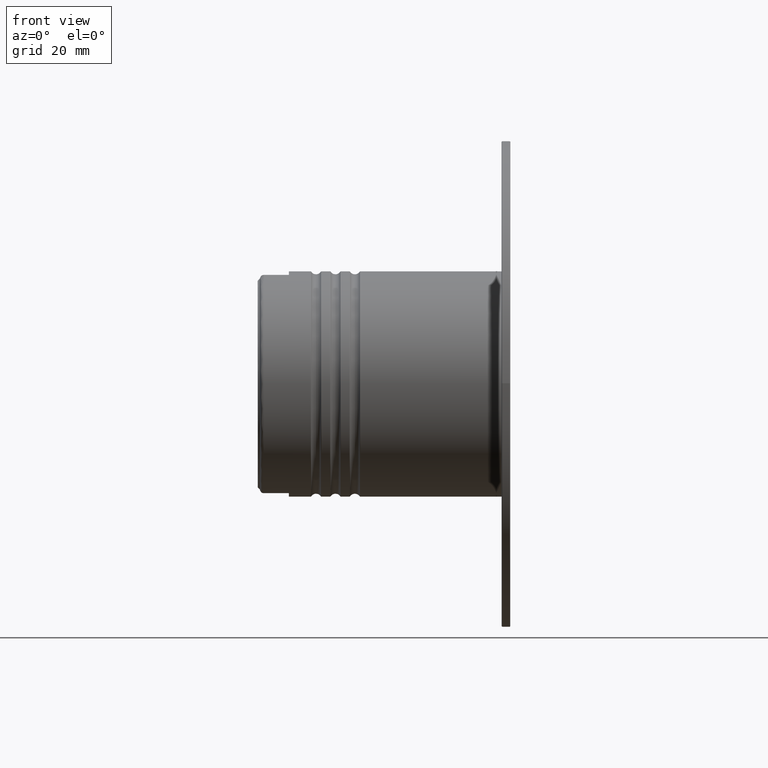
[diagram: clean part render]
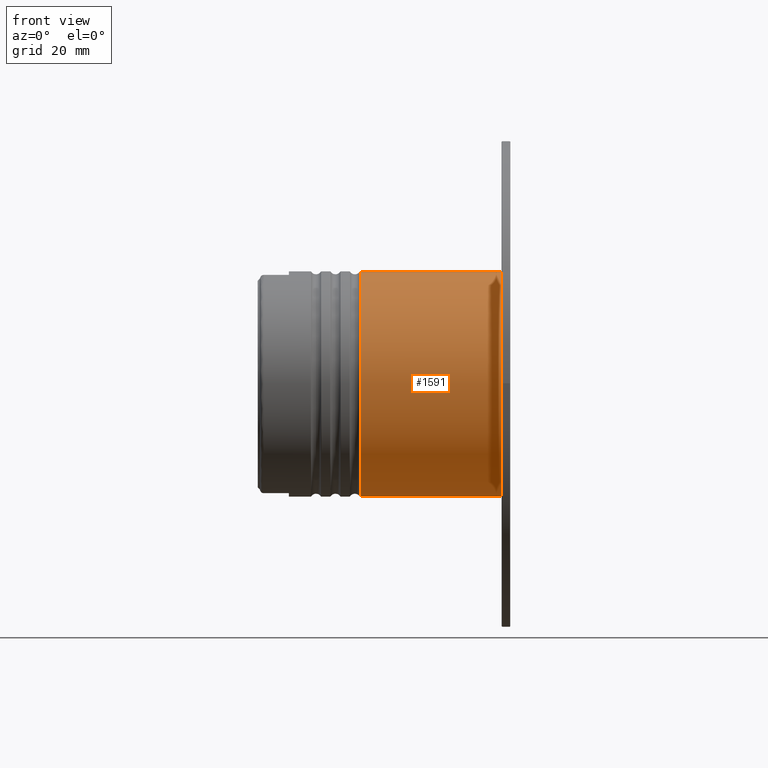
[diagram: same view with one face highlighted and labeled with its STEP entity id]
A machine part, front view. The second image highlights one B-rep face of the part: STEP entity #1591.
In plain terms, the highlighted cylindrical surface (partial cylindrical patch) has radius 29 mm, axis along (1, 0, 0).
Its self-contained STEP definition (entity closure, byte-faithful):
#37 = DIRECTION ( 'NONE',  ( 0.0000000000000000000, 0.0000000000000000000, 1.000000000000000000 ) ) ;
#374 = DIRECTION ( 'NONE',  ( 1.000000000000000000, -0.0000000000000000000, -0.0000000000000000000 ) ) ;
#434 = CARTESIAN_POINT ( 'NONE',  ( -1.899999999999999023, 0.0000000000000000000, -29.00000000000000000 ) ) ;
#495 = LINE ( 'NONE', #1396, #665 ) ;
#528 = DIRECTION ( 'NONE',  ( 0.0000000000000000000, 0.0000000000000000000, -1.000000000000000000 ) ) ;
#550 = DIRECTION ( 'NONE',  ( 1.000000000000000000, -0.0000000000000000000, -0.0000000000000000000 ) ) ;
#651 = AXIS2_PLACEMENT_3D ( 'NONE', #3069, #4155, #37 ) ;
#665 = VECTOR ( 'NONE', #4551, 1000.000000000000000 ) ;
#706 = EDGE_CURVE ( 'NONE', #3043, #4199, #495, .T. ) ;
#724 = CYLINDRICAL_SURFACE ( 'NONE', #6152, 28.99999999999999645 ) ;
#751 = VERTEX_POINT ( 'NONE', #5624 ) ;
#835 = CARTESIAN_POINT ( 'NONE',  ( 0.0000000000000000000, 0.0000000000000000000, 0.0000000000000000000 ) ) ;
#1218 = CARTESIAN_POINT ( 'NONE',  ( -1.899999999999999023, 3.551475717527324818E-15, 29.00000000000000355 ) ) ;
#1396 = CARTESIAN_POINT ( 'NONE',  ( 0.0000000000000000000, 3.551475717527324030E-15, 28.99999999999999645 ) ) ;
#1478 = EDGE_CURVE ( 'NONE', #4199, #4062, #1962, .T. ) ;
#1591 = ADVANCED_FACE ( 'NONE', ( #5043 ), #724, .T. ) ;
#1744 = ORIENTED_EDGE ( 'NONE', *, *, #1478, .F. ) ;
#1863 = EDGE_CURVE ( 'NONE', #751, #4062, #1869, .T. ) ;
#1869 = LINE ( 'NONE', #5786, #5521 ) ;
#1954 = DIRECTION ( 'NONE',  ( 1.000000000000000000, -0.0000000000000000000, -0.0000000000000000000 ) ) ;
#1962 = CIRCLE ( 'NONE', #2832, 29.00000000000000000 ) ;
#2563 = EDGE_CURVE ( 'NONE', #751, #3043, #5885, .T. ) ;
#2832 = AXIS2_PLACEMENT_3D ( 'NONE', #5014, #1954, #528 ) ;
#2934 = ORIENTED_EDGE ( 'NONE', *, *, #1863, .T. ) ;
#2973 = DIRECTION ( 'NONE',  ( 0.0000000000000000000, 0.0000000000000000000, -1.000000000000000000 ) ) ;
#3043 = VERTEX_POINT ( 'NONE', #6314 ) ;
#3069 = CARTESIAN_POINT ( 'NONE',  ( -38.33993941201286049, 0.0000000000000000000, 0.0000000000000000000 ) ) ;
#4062 = VERTEX_POINT ( 'NONE', #434 ) ;
#4155 = DIRECTION ( 'NONE',  ( -1.000000000000000000, -0.0000000000000000000, -0.0000000000000000000 ) ) ;
#4199 = VERTEX_POINT ( 'NONE', #1218 ) ;
#4468 = EDGE_LOOP ( 'NONE', ( #5589, #4993, #2934, #1744 ) ) ;
#4551 = DIRECTION ( 'NONE',  ( 1.000000000000000000, -0.0000000000000000000, -0.0000000000000000000 ) ) ;
#4993 = ORIENTED_EDGE ( 'NONE', *, *, #2563, .F. ) ;
#5014 = CARTESIAN_POINT ( 'NONE',  ( -1.899999999999999023, 0.0000000000000000000, 0.0000000000000000000 ) ) ;
#5043 = FACE_OUTER_BOUND ( 'NONE', #4468, .T. ) ;
#5521 = VECTOR ( 'NONE', #550, 1000.000000000000000 ) ;
#5589 = ORIENTED_EDGE ( 'NONE', *, *, #706, .F. ) ;
#5624 = CARTESIAN_POINT ( 'NONE',  ( -38.33993941201286049, 0.0000000000000000000, -28.99999999999999645 ) ) ;
#5786 = CARTESIAN_POINT ( 'NONE',  ( 0.0000000000000000000, 0.0000000000000000000, -28.99999999999999645 ) ) ;
#5885 = CIRCLE ( 'NONE', #651, 28.99999999999999645 ) ;
#6152 = AXIS2_PLACEMENT_3D ( 'NONE', #835, #374, #2973 ) ;
#6314 = CARTESIAN_POINT ( 'NONE',  ( -38.33993941201286049, 3.551475717527324030E-15, 28.99999999999999645 ) ) ;